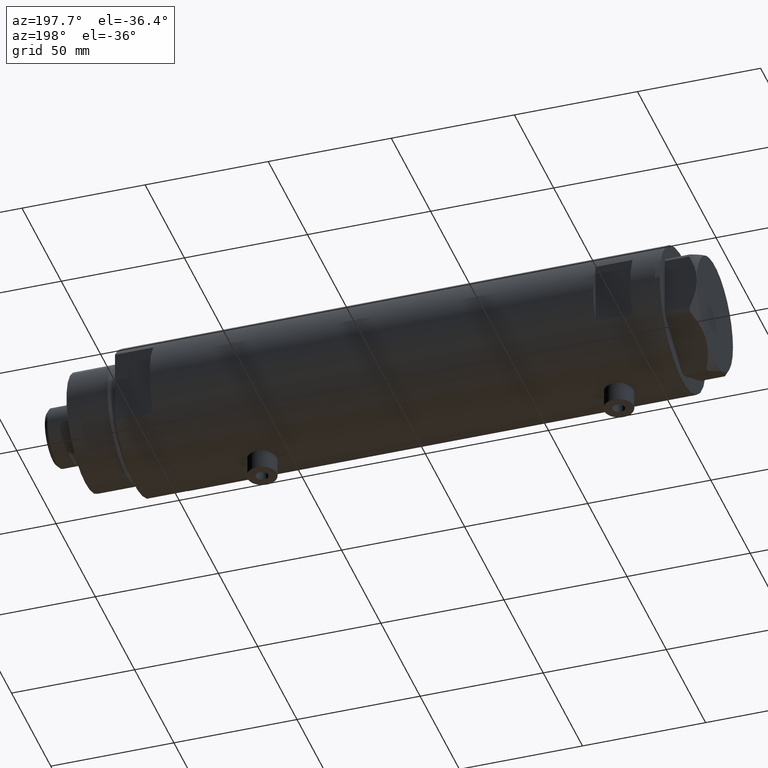
[diagram: clean part render]
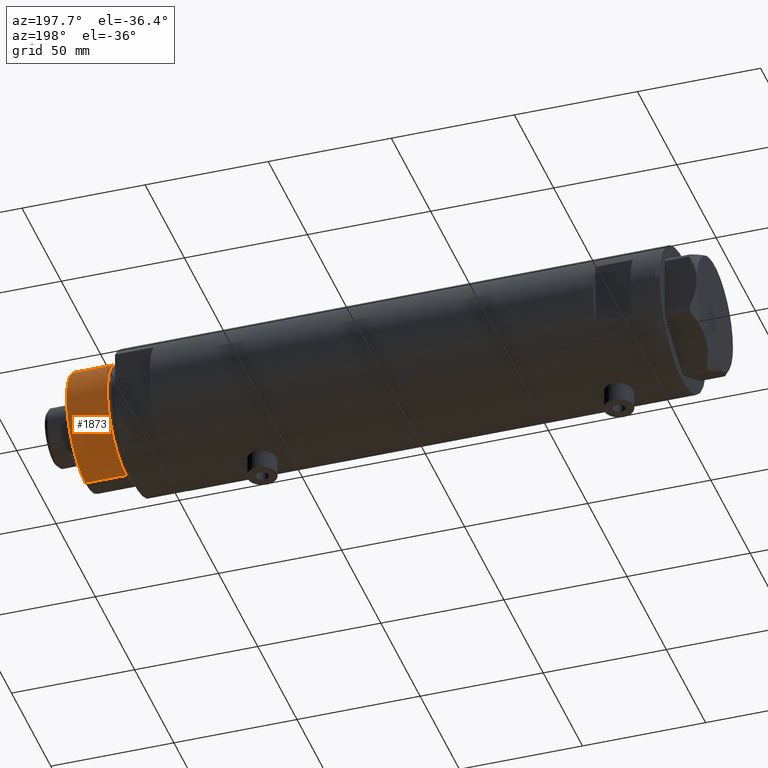
[diagram: same view with one face highlighted and labeled with its STEP entity id]
A machine part, auxiliary view. The second image highlights one B-rep face of the part: STEP entity #1873.
In plain terms, the highlighted cylindrical surface (partial cylindrical patch) has radius 24 mm, axis along (-1, -0, 0).
Its self-contained STEP definition (entity closure, byte-faithful):
#51 = CARTESIAN_POINT ( 'NONE',  ( -24.00000000000000355, 0.000000000000000000, 18.87384048104054202 ) ) ;
#119 = VERTEX_POINT ( 'NONE', #51 ) ;
#133 = ORIENTED_EDGE ( 'NONE', *, *, #4337, .F. ) ;
#509 = DIRECTION ( 'NONE',  ( 1.000000000000000000, 0.000000000000000000, 0.000000000000000000 ) ) ;
#698 = CARTESIAN_POINT ( 'NONE',  ( -24.00000000000000355, 0.000000000000000000, 35.50000000000000711 ) ) ;
#754 = CARTESIAN_POINT ( 'NONE',  ( 0.000000000000000000, 0.000000000000000000, 35.50000000000000711 ) ) ;
#887 = EDGE_CURVE ( 'NONE', #4179, #119, #4395, .T. ) ;
#1216 = CARTESIAN_POINT ( 'NONE',  ( -24.00000000000000355, 0.000000000000000000, 35.50000000000000711 ) ) ;
#1299 = VERTEX_POINT ( 'NONE', #3313 ) ;
#1434 = DIRECTION ( 'NONE',  ( -0.000000000000000000, -0.000000000000000000, -1.000000000000000000 ) ) ;
#1447 = DIRECTION ( 'NONE',  ( -0.000000000000000000, -0.000000000000000000, -1.000000000000000000 ) ) ;
#1486 = FACE_OUTER_BOUND ( 'NONE', #3886, .T. ) ;
#1495 = DIRECTION ( 'NONE',  ( -1.000000000000000000, 0.000000000000000000, 0.000000000000000000 ) ) ;
#1551 = ORIENTED_EDGE ( 'NONE', *, *, #1899, .T. ) ;
#1634 = ORIENTED_EDGE ( 'NONE', *, *, #887, .T. ) ;
#1676 = CARTESIAN_POINT ( 'NONE',  ( 0.000000000000000000, 0.000000000000000000, 18.87384048104054202 ) ) ;
#1873 = ADVANCED_FACE ( 'NONE', ( #1486 ), #3337, .T. ) ;
#1899 = EDGE_CURVE ( 'NONE', #1299, #4179, #4441, .T. ) ;
#2024 = VERTEX_POINT ( 'NONE', #1216 ) ;
#2079 = CIRCLE ( 'NONE', #3321, 24.00000000000000355 ) ;
#2339 = ORIENTED_EDGE ( 'NONE', *, *, #3181, .F. ) ;
#2429 = CARTESIAN_POINT ( 'NONE',  ( 0.000000000000000000, 0.000000000000000000, 35.50000000000000711 ) ) ;
#2621 = DIRECTION ( 'NONE',  ( -0.000000000000000000, -0.000000000000000000, -1.000000000000000000 ) ) ;
#3123 = DIRECTION ( 'NONE',  ( 1.000000000000000000, 0.000000000000000000, 0.000000000000000000 ) ) ;
#3163 = DIRECTION ( 'NONE',  ( -0.000000000000000000, -0.000000000000000000, 1.000000000000000000 ) ) ;
#3181 = EDGE_CURVE ( 'NONE', #2024, #119, #3578, .T. ) ;
#3313 = CARTESIAN_POINT ( 'NONE',  ( 24.00000000000000355, 2.939152317953648289E-15, 35.50000000000000711 ) ) ;
#3321 = AXIS2_PLACEMENT_3D ( 'NONE', #2429, #3907, #3123 ) ;
#3337 = CYLINDRICAL_SURFACE ( 'NONE', #4353, 24.00000000000000355 ) ;
#3339 = VECTOR ( 'NONE', #2621, 1000.000000000000000 ) ;
#3578 = LINE ( 'NONE', #698, #4402 ) ;
#3774 = AXIS2_PLACEMENT_3D ( 'NONE', #1676, #3163, #509 ) ;
#3886 = EDGE_LOOP ( 'NONE', ( #133, #1551, #1634, #2339 ) ) ;
#3907 = DIRECTION ( 'NONE',  ( 0.000000000000000000, 0.000000000000000000, 1.000000000000000000 ) ) ;
#4074 = CARTESIAN_POINT ( 'NONE',  ( 24.00000000000000355, 2.939152317953648289E-15, 35.50000000000000711 ) ) ;
#4108 = CARTESIAN_POINT ( 'NONE',  ( 24.00000000000000355, 2.939152317953648289E-15, 18.87384048104054202 ) ) ;
#4179 = VERTEX_POINT ( 'NONE', #4108 ) ;
#4337 = EDGE_CURVE ( 'NONE', #1299, #2024, #2079, .T. ) ;
#4353 = AXIS2_PLACEMENT_3D ( 'NONE', #754, #1447, #1495 ) ;
#4395 = CIRCLE ( 'NONE', #3774, 24.00000000000000355 ) ;
#4402 = VECTOR ( 'NONE', #1434, 1000.000000000000000 ) ;
#4441 = LINE ( 'NONE', #4074, #3339 ) ;